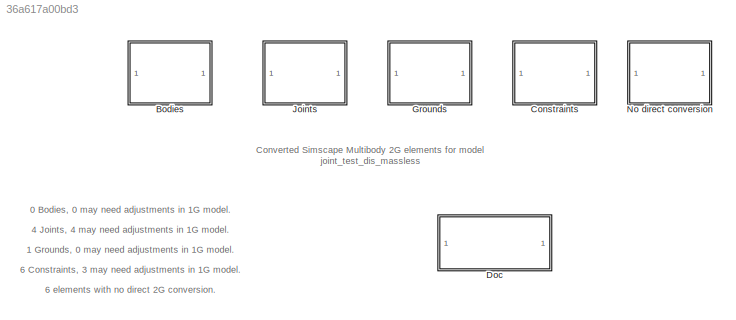
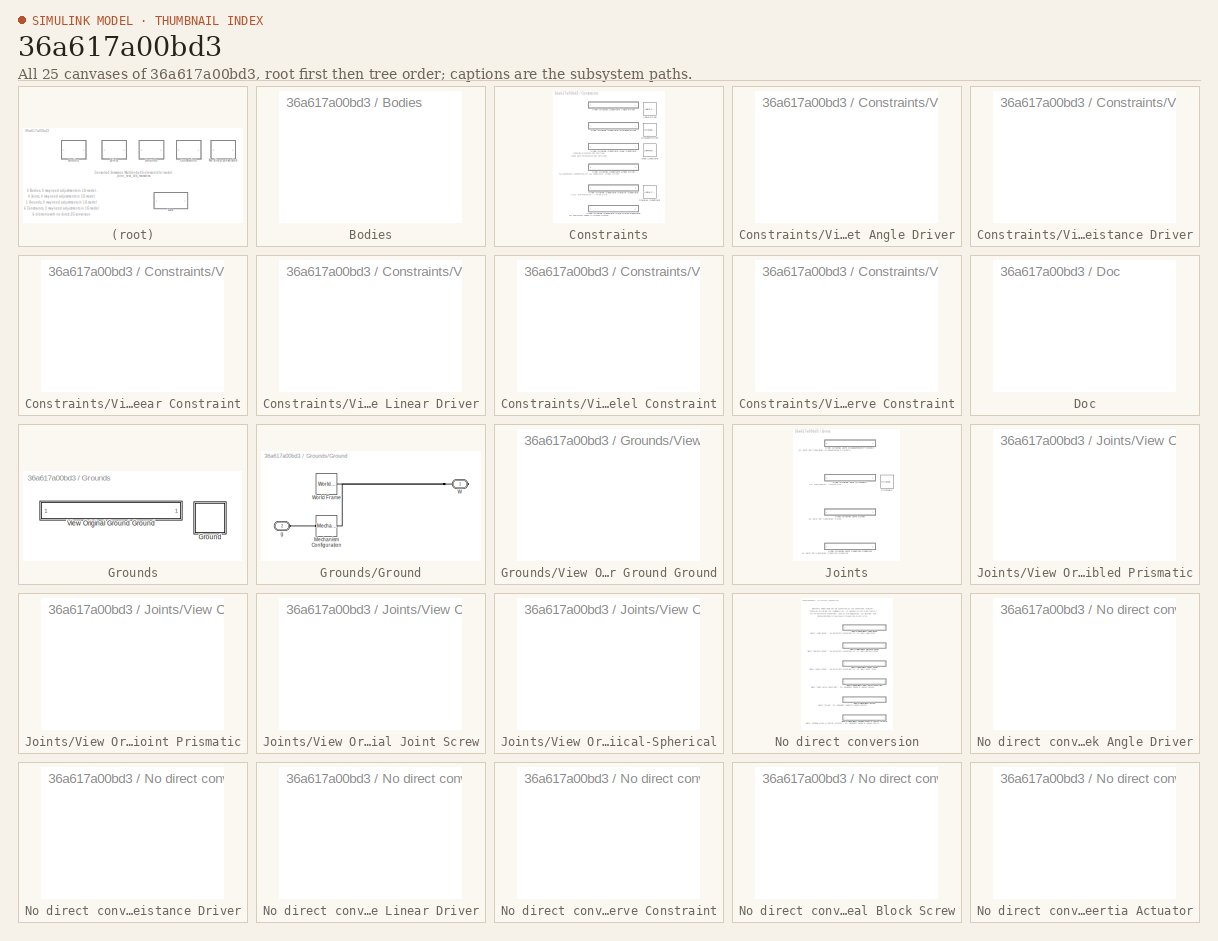
[diagram: thumbnail index - all 25 canvases of the model, root first then tree order]
MODEL slx_36a617a00bd3
KIND model
BLOCK [SubSystem] Bodies
  Ports = []
  RequestExecContextInheritance = off
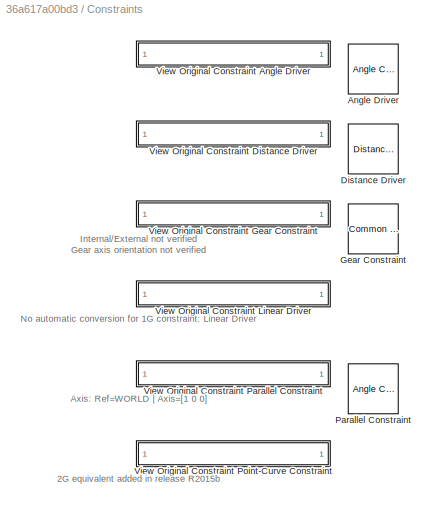
BLOCK [SubSystem] Constraints
  Ports = []
  RequestExecContextInheritance = off
BLOCK [Reference] Constraints/Angle Driver  REF=sm_lib/Constraints/Angle
Constraint
  Angle = 45
  AngleUnits = deg
  BlockFunction = simmechanics.library.constraints.angle_constraint
  ClassName = AngleConstraint
  ConstraintType = General
  LogSimulationData = off
  Ports = [0, 0, 0, 0, 0, 1, 1]
  SenseForce = off
  SenseSignedTorqueMagnitude = off
  SenseTorque = off
  SourceBlock = sm_lib/Constraints/Angle\nConstraint
  SourceType = Angle\nConstraint
  WrenchDir = FollowerOnBase
  WrenchFrame = BaseFrame
BLOCK [Reference] Constraints/Distance Driver  REF=sm_lib/Constraints/Distance
Constraint
  BlockFunction = simmechanics.library.constraints.distance_constraint
  ClassName = DistanceConstraint
  Distance = 1
  DistanceUnits = m
  LogSimulationData = off
  Ports = [0, 0, 0, 0, 0, 1, 1]
  SenseForce = off
  SenseSignedForceMagnitude = off
  SenseTorque = off
  SourceBlock = sm_lib/Constraints/Distance\nConstraint
  SourceType = Distance\nConstraint
  WrenchDir = FollowerOnBase
  WrenchFrame = BaseFrame
BLOCK [Reference] Constraints/Gear Constraint  REF=sm_lib/Gears and
Couplings/Gears/Common Gear
Constraint
  AssemblyGearRotation = Free
  BaseGearRadius = 1
  BaseGearRadiusUnits = m
  BlockFunction = simmechanics.library.gears_couplings_drives.gears.common_gear
  CenterDistance = 20.0
  CenterDistanceUnits = cm
  ClassName = CommonGear
  FollGearRadius = 1
  FollGearRadiusUnits = m
  GearRatio = 1.0
  GearType = External
  LogSimulationData = off
  Ports = [0, 0, 0, 0, 0, 1, 1]
  SourceBlock = sm_lib/Gears and\nCouplings/Gears/Common Gear\nConstraint
  SourceType = Common Gear\nConstraint
  SpecificationType = PitchCircleRadii
BLOCK [Reference] Constraints/Parallel Constraint  REF=sm_lib/Constraints/Angle
Constraint
  Angle = 45
  AngleUnits = deg
  BlockFunction = simmechanics.library.constraints.angle_constraint
  ClassName = AngleConstraint
  ConstraintType = Parallel
  LogSimulationData = off
  Ports = [0, 0, 0, 0, 0, 1, 1]
  SenseForce = off
  SenseSignedTorqueMagnitude = off
  SenseTorque = off
  SourceBlock = sm_lib/Constraints/Angle\nConstraint
  SourceType = Angle\nConstraint
  WrenchDir = FollowerOnBase
  WrenchFrame = BaseFrame
BLOCK [SubSystem] Constraints/View Original Constraint Angle Driver
  OpenFcn = hilite_system('joint_test_dis_massless/Angle Driver');
  Ports = []
  RequestExecContextInheritance = off
BLOCK [SubSystem] Constraints/View Original Constraint Distance Driver
  OpenFcn = hilite_system('joint_test_dis_massless/Distance Driver');
  Ports = []
  RequestExecContextInheritance = off
BLOCK [SubSystem] Constraints/View Original Constraint Gear Constraint
  OpenFcn = hilite_system('joint_test_dis_massless/Gear Constraint');
  Ports = []
  RequestExecContextInheritance = off
BLOCK [SubSystem] Constraints/View Original Constraint Linear Driver
  OpenFcn = hilite_system('joint_test_dis_massless/Linear Driver');
  Ports = []
  RequestExecContextInheritance = off
BLOCK [SubSystem] Constraints/View Original Constraint Parallel Constraint
  OpenFcn = hilite_system('joint_test_dis_massless/Parallel Constraint');
  Ports = []
  RequestExecContextInheritance = off
BLOCK [SubSystem] Constraints/View Original Constraint Point-Curve Constraint
  OpenFcn = hilite_system('joint_test_dis_massless/Point-Curve Constraint');
  Ports = []
  RequestExecContextInheritance = off
BLOCK [SubSystem] Doc
  OpenFcn = web('SM1G2G_Warnings_Help.html');
  Ports = []
  RequestExecContextInheritance = off
BLOCK [SubSystem] Grounds
  Ports = []
  RequestExecContextInheritance = off
BLOCK [SubSystem] Grounds/Ground
  Ports = [0, 0, 0, 0, 0, 1, 1]
  RequestExecContextInheritance = off
BLOCK [Reference] Grounds/Ground/Mechanism Configuration  REF=sm_lib/Utilities/Mechanism
Configuration
  BlockFunction = simmechanics.library.utilities.mechanism_configuration
  ClassName = MechanismConfiguration
  GravityUnits = m/s^2
  GravityVector = [0 -9.81 0]
  LinearizationDelta = 0.001
  LogSimulationData = off
  Ports = [0, 0, 0, 0, 0, 1, 1]
  SourceBlock = sm_lib/Utilities/Mechanism\nConfiguration
  SourceType = Mechanism\nConfiguration
  UniformGravity = TimeVarying
BLOCK [PMIOPort] Grounds/Ground/W
  Port = 1
  Side = Right
BLOCK [Reference] Grounds/Ground/World Frame  REF=sm_lib/Frames and
Transforms/World Frame
  BlockFunction = simmechanics.library.frames_transforms.world_frame
  ClassName = WorldFrame
  LogSimulationData = off
  Ports = [0, 0, 0, 0, 0, 0, 1]
  SourceBlock = sm_lib/Frames and\nTransforms/World Frame
  SourceType = World Frame
BLOCK [PMIOPort] Grounds/Ground/g
  Port = 2
  Side = Left
BLOCK [SubSystem] Grounds/View Original Ground Ground
  OpenFcn = hilite_system('joint_test_dis_massless/Ground');
  Ports = []
  RequestExecContextInheritance = off
BLOCK [SubSystem] Joints
  Ports = []
  RequestExecContextInheritance = off
BLOCK [Reference] Joints/Prismatic  REF=sm_lib/Joints/Prismatic
Joint
  BlockFunction = simmechanics.library.joints.prismatic_joint
  ClassName = PrismaticJoint
  CompositeWrenchDir = FollowerOnBase
  CompositeWrenchFrame = BaseFrame
  DampingCoefficient = 0
  DampingCoefficientUnits = N/(m/s)
  EquilibriumPosition = 0
  EquilibriumPositionUnits = m
  LogSimulationData = off
  MotionActuationMode = ComputedMotion
  Ports = [0, 0, 0, 0, 0, 1, 1]
  PositionTargetPriority = High
  PositionTargetSpecify = off
  PositionTargetValue = 0
  PositionTargetValueUnits = m
  SenseAcceleration = off
  SenseConstraintForce = off
  SenseConstraintForceX = off
  SenseConstraintForceY = off
  SenseConstraintForceZ = off
  SenseConstraintTorque = off
  SenseConstraintTorqueX = off
  SenseConstraintTorqueY = off
  SenseConstraintTorqueZ = off
  SensePosition = off
  SenseTorqueForce = off
  SenseTotalForce = off
  SenseTotalForceX = off
  SenseTotalForceY = off
  SenseTotalForceZ = off
  SenseTotalTorque = off
  SenseTotalTorqueX = off
  SenseTotalTorqueY = off
  SenseTotalTorqueZ = off
  SenseVelocity = off
  SourceBlock = sm_lib/Joints/Prismatic\nJoint
  SourceType = Prismatic\nJoint
  SpringStiffness = 0
  SpringStiffnessUnits = N/m
  TorqueActuationMode = NoTorque
  VelocityTargetPriority = High
  VelocityTargetSpecify = off
  VelocityTargetValue = 0
  VelocityTargetValueUnits = m/s
BLOCK [SubSystem] Joints/View Original Joint Disassembled Prismatic
  OpenFcn = hilite_system('joint_test_dis_massless/Disassembled Prismatic');
  Ports = []
  RequestExecContextInheritance = off
BLOCK [SubSystem] Joints/View Original Joint Prismatic
  OpenFcn = hilite_system('joint_test_dis_massless/Prismatic');
  Ports = []
  RequestExecContextInheritance = off
BLOCK [SubSystem] Joints/View Original Joint Screw
  OpenFcn = hilite_system('joint_test_dis_massless/Screw');
  Ports = []
  RequestExecContextInheritance = off
BLOCK [SubSystem] Joints/View Original Joint Spherical-Spherical
  OpenFcn = hilite_system('joint_test_dis_massless/Spherical-Spherical');
  Ports = []
  RequestExecContextInheritance = off
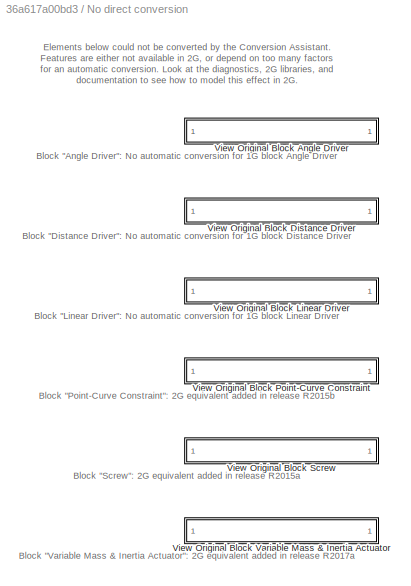
BLOCK [SubSystem] No direct conversion
  Ports = []
  RequestExecContextInheritance = off
BLOCK [SubSystem] No direct conversion/View Original Block Angle Driver
  OpenFcn = hilite_system('joint_test_dis_massless/Angle Driver');
  Ports = []
  RequestExecContextInheritance = off
BLOCK [SubSystem] No direct conversion/View Original Block Distance Driver
  OpenFcn = hilite_system('joint_test_dis_massless/Distance Driver');
  Ports = []
  RequestExecContextInheritance = off
BLOCK [SubSystem] No direct conversion/View Original Block Linear Driver
  OpenFcn = hilite_system('joint_test_dis_massless/Linear Driver');
  Ports = []
  RequestExecContextInheritance = off
BLOCK [SubSystem] No direct conversion/View Original Block Point-Curve Constraint
  OpenFcn = hilite_system('joint_test_dis_massless/Point-Curve Constraint');
  Ports = []
  RequestExecContextInheritance = off
BLOCK [SubSystem] No direct conversion/View Original Block Screw
  OpenFcn = hilite_system('joint_test_dis_massless/Screw');
  Ports = []
  RequestExecContextInheritance = off
BLOCK [SubSystem] No direct conversion/View Original Block Variable Mass & Inertia Actuator
  OpenFcn = hilite_system('joint_test_dis_massless/Variable Mass & Inertia Actuator');
  Ports = []
  RequestExecContextInheritance = off
ANNOTATION (root): 0 Bodies, 0 may need adjustments in 1G model.
ANNOTATION (root): 1 Grounds, 0 may need adjustments in 1G model.
ANNOTATION (root): 4 Joints, 4 may need adjustments in 1G model.
ANNOTATION (root): 6 Constraints, 3 may need adjustments in 1G model.
ANNOTATION (root): 6 elements with no direct 2G conversion.
ANNOTATION (root): Converted Simscape Multibody 2G elements for model joint_test_dis_massless
ANNOTATION Constraints: 2G equivalent added in release R2015b
ANNOTATION Constraints: No automatic conversion for 1G constraint: Linear Driver
ANNOTATION Constraints: Axis: Ref=WORLD | Axis=[1 0 0]
ANNOTATION Constraints: Internal/External not verified Gear axis orientation not verified
ANNOTATION Joints: 1G Joint not translated: Disassembled Prismatic
ANNOTATION Joints: 1G Joint not translated: Screw
ANNOTATION Joints: 1G Joint not translated: Spherical-Spherical
ANNOTATION Joints: P1: Ref=World | Axis=[1 0 0]
ANNOTATION No direct conversion: Block "Angle Driver": No automatic conversion for 1G block Angle Driver
ANNOTATION No direct conversion: Block "Distance Driver": No automatic conversion for 1G block Distance Driver
ANNOTATION No direct conversion: Block "Linear Driver": No automatic conversion for 1G block Linear Driver
ANNOTATION No direct conversion: Block "Point-Curve Constraint": 2G equivalent added in release R2015b
ANNOTATION No direct conversion: Block "Screw": 2G equivalent added in release R2015a
ANNOTATION No direct conversion: Block "Variable Mass & Inertia Actuator": 2G equivalent added in release R2017a
ANNOTATION No direct conversion: Elements below could not be converted by the Conversion Assistant. Features are either not available in 2G, or depend on too many factors for an automatic conversion. Look at the diagnostics, 2G libraries, and documentation to see how to model this effect in 2G.
PLINE Grounds/Ground/Mechanism Configuration:LConn1 -- Grounds/Ground/g:RConn1
PNET net1: Grounds/Ground/Mechanism Configuration:RConn1 -- Grounds/Ground/W:RConn1 -- Grounds/Ground/World Frame:RConn1
note: PNET lines group multi-terminal physical nets as a canonical sorted terminal list (undirected conserving connections); 2-terminal nets keep the pairwise PLINE form
